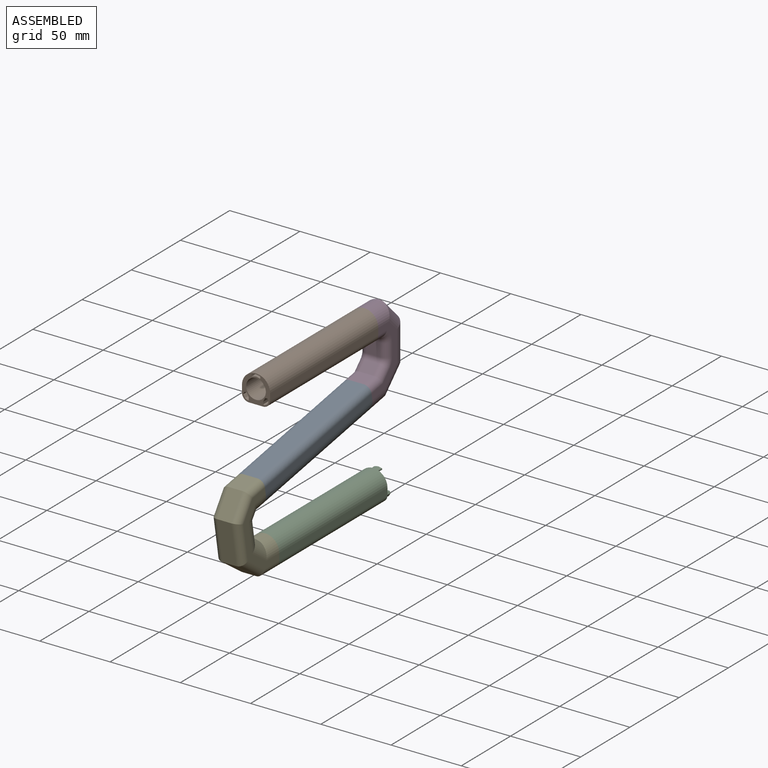
[diagram: assembled view]
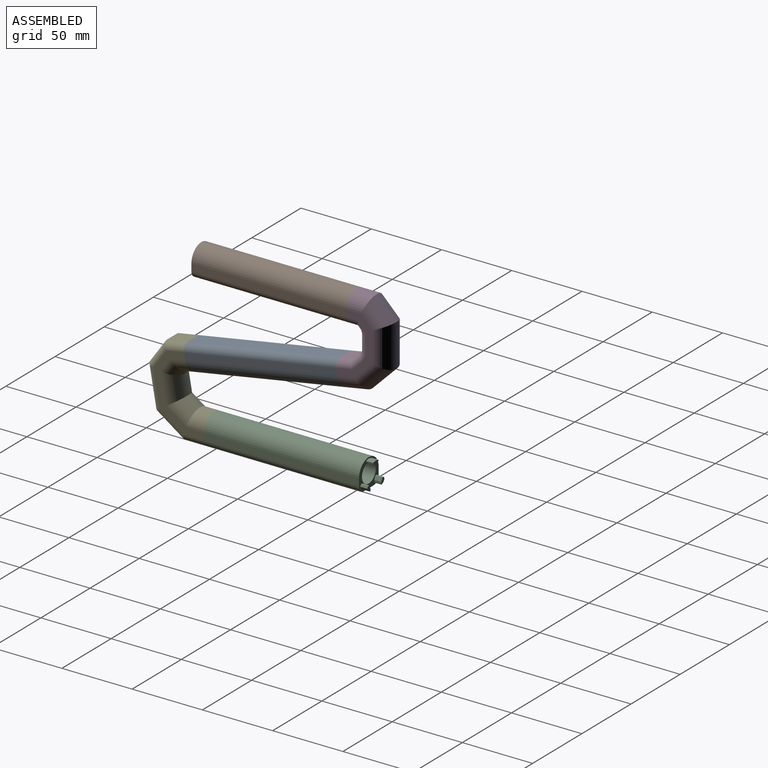
[diagram: assembled view, second angle]
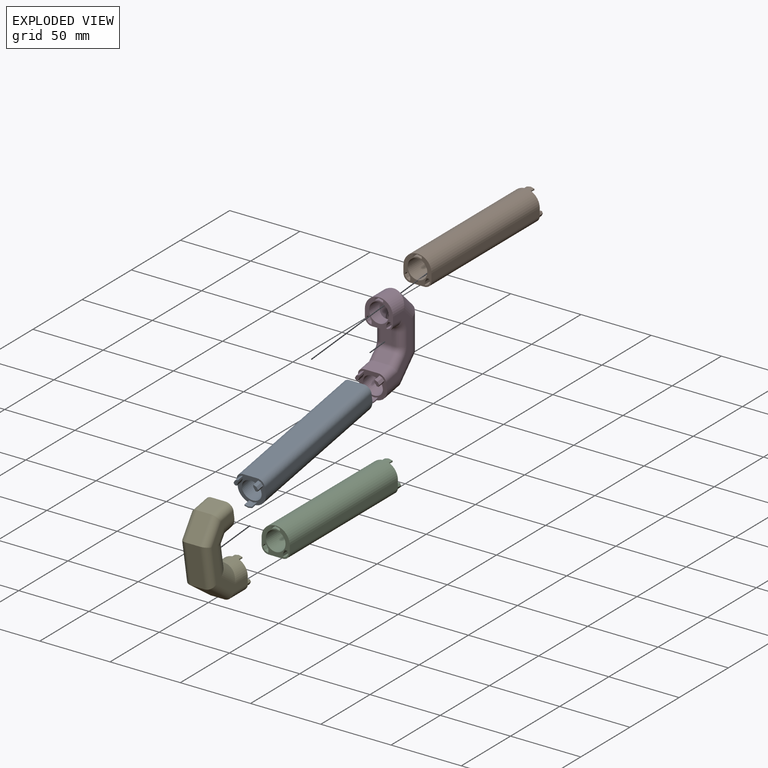
[diagram: exploded view]
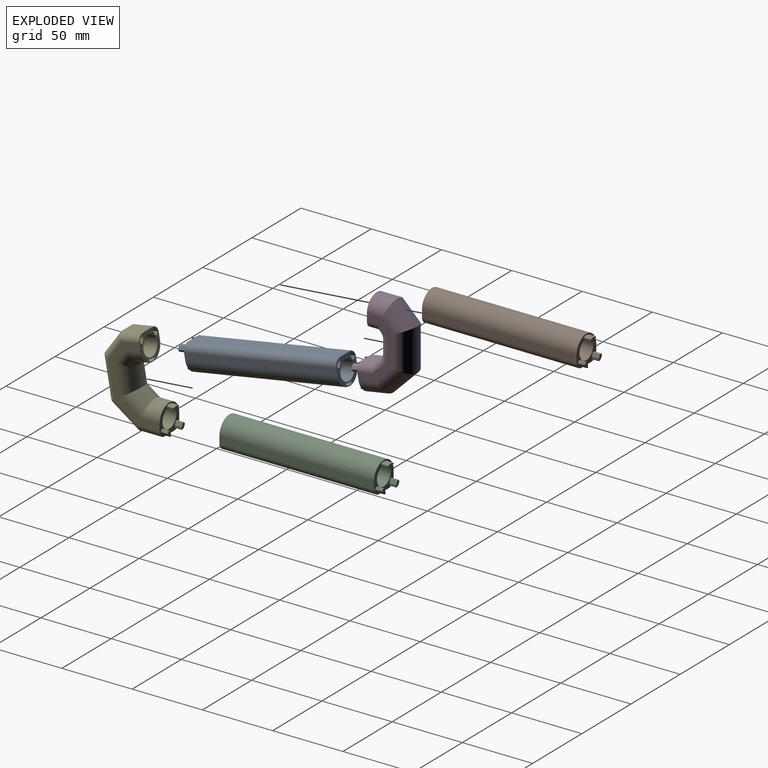
[diagram: exploded view, second angle]
ASSEMBLY  parts=5 mates=4
PART A: 59 faces, bbox 20x115x20 mm
  f0: plane 20x20mm, normal (0,1,0), area 169.7mm2, adj f2,f3,f4,f5,f6,f7,f8,f34
  f1: plane 20x20mm, normal (0,-1,0), area 157.8mm2, adj f2,f3,f4,f5,f6,f7,f8,f9
  f2: plane 110x5mm, normal (-1,0,0), area 550mm2, adj f0,f1,f5,f7
  f3: plane 110x10mm, normal (0,0,-1), area 1100mm2, adj f0,f1,f7,f8
  f4: plane 110x5mm, normal (1,0,0), area 550mm2, adj f0,f1,f5,f8
  f5: cylinder r=10mm len=110mm, axis (0,1,0), area 3455.8mm2, adj f0,f1,f2,f4
  f6: cylinder r=7mm len=110mm, axis (0,1,0), area 4838.1mm2, adj f0,f1
  f7: cylinder r=5mm len=110mm, axis (0,1,0), area 863.9mm2, adj f0,f1,f2,f3
  f8: cylinder r=5mm len=110mm, axis (0,-1,0), area 863.9mm2, adj f0,f1,f3,f4
  f9: cylinder r=0.62mm len=5mm, axis (0,-1,0), area 1.4mm2, adj f1,f10,f16,f17
  f10: plane 5x2.86mm, normal (0.22,0,0.98), area 14.7mm2, adj f1,f9,f11,f17
  f11: plane 5x1.5mm, normal (-1,0,0), area 7.5mm2, adj f1,f10,f12,f17
  f12: plane 5x2.86mm, normal (-0.22,0,-0.98), area 14.7mm2, adj f1,f11,f13,f17
  f13: cylinder r=0.62mm len=5mm, axis (0,-1,0), area 1.4mm2, adj f1,f12,f14,f17
  f14: plane 5x2.86mm, normal (0.22,0,-0.98), area 14.7mm2, adj f1,f13,f15,f17
  f15: plane 5x1.5mm, normal (1,0,0), area 7.5mm2, adj f1,f14,f16,f17
  f16: plane 5x2.86mm, normal (-0.22,0,0.98), area 14.7mm2, adj f1,f9,f15,f17
  f17: plane 6x2.16mm, normal (0,-1,0), area 9mm2, adj f9,f10,f11,f12,f13,f14,f15,f16
  f18: plane 5x1.79mm, normal (-0.45,0,0.89), area 10mm2, adj f1,f19,f24,f25
  f19: plane 5x2.17mm, normal (-0.87,0,0.5), area 12.5mm2, adj f1,f18,f20,f25
  f20: plane 5x1.69mm, normal (-0.88,0,-0.48), area 9.7mm2, adj f1,f19,f21,f25
  f21: plane 5x1.68mm, normal (0,0,-1), area 8.4mm2, adj f1,f20,f22,f25
  f22: plane 5x2.7mm, normal (0.9,0,-0.44), area 15mm2, adj f1,f21,f23,f25
  f23: plane 5x1.5mm, normal (1,0,0), area 7.5mm2, adj f1,f22,f24,f25
  f24: cylinder r=0.62mm len=5mm, axis (0,-1,0), area 6.3mm2, adj f1,f18,f23,f25
  f25: plane 4.82x3.93mm, normal (0,-1,0), area 12.8mm2, adj f18,f19,f20,f21,f22,f23,f24
  f26: plane 5x1.69mm, normal (0.88,0,-0.48), area 9.7mm2, adj f1,f27,f32,f33
  f27: plane 5x2.17mm, normal (0.87,0,0.5), area 12.5mm2, adj f1,f26,f28,f33
  f28: plane 5x1.79mm, normal (0.45,0,0.89), area 10mm2, adj f1,f27,f29,f33
  f29: cylinder r=0.62mm len=5mm, axis (0,-1,0), area 6.3mm2, adj f1,f28,f30,f33
  f30: plane 5x1.5mm, normal (-1,0,0), area 7.5mm2, adj f1,f29,f31,f33
  f31: plane 5x2.7mm, normal (-0.9,0,-0.44), area 15mm2, adj f1,f30,f32,f33
  f32: plane 5x1.68mm, normal (0,0,-1), area 8.4mm2, adj f1,f26,f31,f33
  f33: plane 4.82x3.93mm, normal (0,-1,0), area 12.8mm2, adj f26,f27,f28,f29,f30,f31,f32
  f34: plane 5x1.71mm, normal (0.45,0,-0.89), area 9.6mm2, adj f0,f35,f40,f41
  f35: cylinder r=0.32mm len=5mm, axis (0,-1,0), area 3.2mm2, adj f0,f34,f36,f41
  f36: plane 5x1.43mm, normal (-1,0,0), area 7.2mm2, adj f0,f35,f37,f41
  f37: plane 5x2.47mm, normal (-0.9,0,0.44), area 13.7mm2, adj f0,f36,f38,f41
  f38: plane 5x1.32mm, normal (0,0,1), area 6.6mm2, adj f0,f37,f39,f41
  f39: plane 5x1.39mm, normal (0.88,0,0.48), area 7.9mm2, adj f0,f38,f40,f41
  f40: plane 5x1.94mm, normal (0.87,0,-0.5), area 11.2mm2, adj f0,f34,f39,f41
  f41: plane 4.22x3.29mm, normal (0,1,0), area 9mm2, adj f34,f35,f36,f37,f38,f39,f40
  f42: plane 5x1.39mm, normal (-0.88,0,0.48), area 7.9mm2, adj f0,f43,f48,f49
  f43: plane 5x1.32mm, normal (0,0,1), area 6.6mm2, adj f0,f42,f44,f49
  f44: plane 5x2.47mm, normal (0.9,0,0.44), area 13.7mm2, adj f0,f43,f45,f49
  f45: plane 5x1.43mm, normal (1,0,0), area 7.2mm2, adj f0,f44,f46,f49
  f46: cylinder r=0.32mm len=5mm, axis (0,-1,0), area 3.2mm2, adj f0,f45,f47,f49
  f47: plane 5x1.71mm, normal (-0.45,0,-0.89), area 9.6mm2, adj f0,f46,f48,f49
  f48: plane 5x1.94mm, normal (-0.87,0,-0.5), area 11.2mm2, adj f0,f42,f47,f49
  f49: plane 4.22x3.29mm, normal (0,1,0), area 9mm2, adj f42,f43,f44,f45,f46,f47,f48
  f50: plane 5x2.5mm, normal (0.22,0,-0.98), area 12.8mm2, adj f0,f51,f57,f58
  f51: plane 5x0.89mm, normal (-1,0,0), area 4.4mm2, adj f0,f50,f52,f58
  f52: plane 5x2.63mm, normal (-0.22,0,0.98), area 13.5mm2, adj f0,f51,f53,f58
  f53: cylinder r=0.32mm len=5mm, axis (0,-1,0), area 0.7mm2, adj f0,f52,f54,f58
  f54: plane 5x2.63mm, normal (0.22,0,0.98), area 13.5mm2, adj f0,f53,f55,f58
  f55: plane 5x0.89mm, normal (1,0,0), area 4.4mm2, adj f0,f54,f56,f58
  f56: plane 5x2.5mm, normal (-0.22,0,-0.98), area 12.8mm2, adj f0,f55,f57,f58
  f57: cylinder r=0.92mm len=5mm, axis (0,-1,0), area 2mm2, adj f0,f50,f56,f58
  f58: plane 5.4x1.49mm, normal (0,1,0), area 4.8mm2, adj f50,f51,f52,f53,f54,f55,f56,f57
PART B: same geometry as A
PART C: same geometry as A
PART D: 85 faces, bbox 20x51.8x62.8 mm
  f0: plane 20x16.38mm, normal (0,-0.57,0.82), area 169.7mm2, adj f6,f7,f8,f9,f18,f28,f34,f60
  f1: plane 20x14.14mm, normal (0,-0.71,0.71), area 157.7mm2, adj f5,f7,f8,f13,f14,f16,f30,f35
  f2: plane 10x7.93mm, normal (0,-1,0), area 79.3mm2, adj f6,f22,f26,f29
  f3: plane 10x6.57mm, normal (0,-0.71,0.71), area 92.9mm2, adj f20,f21,f25,f26
  f4: plane 10x1.36mm, normal (0,0,1), area 13.6mm2, adj f5,f15,f19,f20
  f5: plane 10x4.75mm, normal (0,0.71,0.71), area 67.2mm2, adj f1,f4,f14,f16
  f6: plane 10x8.19mm, normal (0,-0.82,-0.57), area 100mm2, adj f0,f2,f18,f28
  f7: plane 43.42x34.75mm, normal (1,0,0), area 339mm2, adj f0,f1,f9,f10,f11,f12,f13,f16
  f8: plane 43.42x34.75mm, normal (-1,0,0), area 339mm2, adj f0,f1,f9,f10,f11,f12,f13,f14
  f9: cylinder r=10mm len=20mm, axis (0,0.57,-0.82), area 476.3mm2, adj f0,f7,f8,f10
  f10: cylinder r=10mm len=24.62mm, axis (0,0,-1), area 689.2mm2, adj f7,f8,f9,f11
  f11: cylinder r=10mm len=28.3mm, axis (0,-0.71,-0.71), area 847.9mm2, adj f7,f8,f10,f12
  f12: cylinder r=10mm len=20.03mm, axis (0,-1,0), area 533.7mm2, adj f7,f8,f11,f13
  f13: cylinder r=10mm len=20mm, axis (0,-0.71,0.71), area 424mm2, adj f1,f7,f8,f12
  f14: cylinder r=5mm len=9.75mm, axis (0,-0.71,0.71), area 58.7mm2, adj f1,f5,f8,f15
  f15: cylinder r=5mm len=5mm, axis (0,-1,0), area 16.6mm2, adj f4,f8,f14,f17
  f16: cylinder r=5mm len=9.75mm, axis (0,0.71,-0.71), area 58.7mm2, adj f1,f5,f7,f19
  f17: torus R=10mm, axis (1,0,0), area 42.1mm2, adj f8,f15,f20,f21
  f18: cylinder r=5mm len=12.35mm, axis (0,0.57,-0.82), area 83mm2, adj f0,f6,f8,f22
  f19: cylinder r=5mm len=5mm, axis (0,1,0), area 16.6mm2, adj f4,f7,f16,f23
  f20: cylinder r=5mm len=10mm, axis (-1,0,0), area 39.3mm2, adj f3,f4,f17,f23
  f21: cylinder r=5mm len=10.1mm, axis (0,-0.71,-0.71), area 73mm2, adj f3,f8,f17,f24
  f22: cylinder r=5mm len=9.51mm, axis (0,0,-1), area 66.8mm2, adj f2,f8,f18,f24
  f23: torus R=10mm, axis (1,0,0), area 42.1mm2, adj f7,f19,f20,f25
  f24: torus R=10mm, axis (1,0,0), area 42.1mm2, adj f8,f21,f22,f26
  f25: cylinder r=5mm len=10.1mm, axis (0,0.71,0.71), area 73mm2, adj f3,f7,f23,f27
  f26: cylinder r=5mm len=10mm, axis (1,0,0), area 39.3mm2, adj f2,f3,f24,f27
  f27: torus R=10mm, axis (1,0,0), area 42.1mm2, adj f7,f25,f26,f29
  f28: cylinder r=5mm len=12.35mm, axis (0,-0.57,0.82), area 83mm2, adj f0,f6,f7,f29
  f29: cylinder r=5mm len=9.51mm, axis (0,0,1), area 66.8mm2, adj f2,f7,f27,f28
  f30: cylinder r=7mm len=19.66mm, axis (0,0.71,-0.71), area 477.6mm2, adj f1,f31
  f31: cylinder r=7mm len=17.59mm, axis (0,1,0), area 515.3mm2, adj f30,f32
  f32: cylinder r=7mm len=29.41mm, axis (0,0.71,0.71), area 955.1mm2, adj f31,f33
  f33: cylinder r=7mm len=22.47mm, axis (0,0,1), area 760.7mm2, adj f32,f34
  f34: cylinder r=7mm len=20.64mm, axis (0,-0.57,0.82), area 578.5mm2, adj f0,f33
  f35: plane 4.6x4.6mm, normal (1,0,0), area 7.5mm2, adj f1,f36,f41,f42
  f36: plane 5.44x5.44mm, normal (0.9,0.31,0.31), area 15mm2, adj f1,f35,f37,f42
  f37: plane 3.54x3.54mm, normal (0,0.71,0.71), area 8.4mm2, adj f1,f36,f38,f42
  f38: plane 4.73x4.73mm, normal (-0.88,0.34,0.34), area 9.7mm2, adj f1,f37,f39,f42
  f39: plane 5.07x5.07mm, normal (-0.87,-0.35,-0.35), area 12.5mm2, adj f1,f38,f40,f42
  f40: plane 4.17x4.17mm, normal (-0.45,-0.63,-0.63), area 10mm2, adj f1,f39,f41,f42
  f41: cylinder r=0.62mm len=3.97mm, axis (0,-0.71,0.71), area 6.3mm2, adj f1,f35,f40,f42
  f42: plane 3.93x3.41mm, normal (0,-0.71,0.71), area 12.8mm2, adj f35,f36,f37,f38,f39,f40,f41
  f43: plane 3.54x3.54mm, normal (0,0.71,0.71), area 8.4mm2, adj f1,f44,f49,f50
  f44: plane 5.44x5.44mm, normal (-0.9,0.31,0.31), area 15mm2, adj f1,f43,f45,f50
  f45: plane 4.6x4.6mm, normal (-1,0,0), area 7.5mm2, adj f1,f44,f46,f50
  f46: cylinder r=0.62mm len=3.97mm, axis (0,-0.71,0.71), area 6.3mm2, adj f1,f45,f47,f50
  f47: plane 4.17x4.17mm, normal (0.45,-0.63,-0.63), area 10mm2, adj f1,f46,f48,f50
  f48: plane 5.07x5.07mm, normal (0.87,-0.35,-0.35), area 12.5mm2, adj f1,f47,f49,f50
  f49: plane 4.73x4.73mm, normal (0.88,0.34,0.34), area 9.7mm2, adj f1,f43,f48,f50
  f50: plane 3.93x3.41mm, normal (0,-0.71,0.71), area 12.8mm2, adj f43,f44,f45,f46,f47,f48,f49
  f51: plane 4.6x4.6mm, normal (-1,0,0), area 7.5mm2, adj f1,f52,f58,f59
  f52: plane 3.99x3.99mm, normal (0.22,-0.69,-0.69), area 14.8mm2, adj f1,f51,f53,f59
  f53: cylinder r=0.62mm len=3.55mm, axis (0,-0.71,0.71), area 1.4mm2, adj f1,f52,f54,f59
  f54: plane 3.99x3.99mm, normal (-0.22,-0.69,-0.69), area 14.8mm2, adj f1,f53,f55,f59
  f55: plane 4.6x4.6mm, normal (1,0,0), area 7.5mm2, adj f1,f54,f56,f59
  f56: plane 3.99x3.99mm, normal (0.22,0.69,0.69), area 14.8mm2, adj f1,f55,f57,f59
  f57: cylinder r=0.62mm len=3.55mm, axis (0,-0.71,0.71), area 1.4mm2, adj f1,f56,f58,f59
  f58: plane 3.99x3.99mm, normal (-0.22,0.69,0.69), area 14.8mm2, adj f1,f51,f57,f59
  f59: plane 6.04x1.53mm, normal (0,-0.71,0.71), area 9.1mm2, adj f51,f52,f53,f54,f55,f56,f57,f58
  f60: plane 4.59x3.57mm, normal (-0.45,-0.73,-0.51), area 9.6mm2, adj f0,f61,f66,f67
  f61: cylinder r=0.32mm len=4.28mm, axis (0,0.57,-0.82), area 3.2mm2, adj f0,f60,f62,f67
  f62: plane 4.92x4.04mm, normal (1,0,0), area 7.2mm2, adj f0,f61,f63,f67
  f63: plane 5.51x4.89mm, normal (0.9,0.36,0.25), area 13.7mm2, adj f0,f62,f64,f67
  f64: plane 4.1x2.87mm, normal (0,0.82,0.57), area 6.6mm2, adj f0,f63,f65,f67
  f65: plane 4.89x4mm, normal (-0.88,0.4,0.28), area 7.9mm2, adj f0,f64,f66,f67
  f66: plane 5.21x4.46mm, normal (-0.87,-0.41,-0.29), area 11.2mm2, adj f0,f60,f65,f67
  f67: plane 3.45x3.29mm, normal (0,-0.57,0.82), area 9mm2, adj f60,f61,f62,f63,f64,f65,f66
  f68: plane 4.89x4mm, normal (0.88,0.4,0.28), area 7.9mm2, adj f0,f69,f74,f75
  f69: plane 4.1x2.87mm, normal (0,0.82,0.57), area 6.6mm2, adj f0,f68,f70,f75
  f70: plane 5.51x4.89mm, normal (-0.9,0.36,0.25), area 13.7mm2, adj f0,f69,f71,f75
  f71: plane 4.92x4.04mm, normal (-1,0,0), area 7.2mm2, adj f0,f70,f72,f75
  f72: cylinder r=0.32mm len=4.28mm, axis (0,0.57,-0.82), area 3.2mm2, adj f0,f71,f73,f75
  f73: plane 4.59x3.57mm, normal (0.45,-0.73,-0.51), area 9.6mm2, adj f0,f72,f74,f75
  f74: plane 5.21x4.46mm, normal (0.87,-0.41,-0.29), area 11.2mm2, adj f0,f68,f73,f75
  f75: plane 3.45x3.29mm, normal (0,-0.57,0.82), area 9mm2, adj f68,f69,f70,f71,f72,f73,f74
  f76: plane 4.42x3.33mm, normal (-0.22,-0.8,-0.56), area 12.8mm2, adj f0,f77,f83,f84
  f77: plane 4.6x3.59mm, normal (1,0,0), area 4.4mm2, adj f0,f76,f78,f84
  f78: plane 4.44x3.35mm, normal (0.22,0.8,0.56), area 13.5mm2, adj f0,f77,f79,f84
  f79: cylinder r=0.32mm len=4.1mm, axis (0,0.57,-0.82), area 0.7mm2, adj f0,f78,f80,f84
  f80: plane 4.44x3.35mm, normal (-0.22,0.8,0.56), area 13.5mm2, adj f0,f79,f81,f84
  f81: plane 4.6x3.59mm, normal (-1,0,0), area 4.4mm2, adj f0,f80,f82,f84
  f82: plane 4.42x3.33mm, normal (0.22,-0.8,-0.56), area 12.8mm2, adj f0,f81,f83,f84
  f83: cylinder r=0.92mm len=4.11mm, axis (0,0.57,-0.82), area 2mm2, adj f0,f76,f82,f84
  f84: plane 5.4x1.22mm, normal (0,-0.57,0.82), area 4.8mm2, adj f76,f77,f78,f79,f80,f81,f82,f83
PART E: 79 faces, bbox 20x51.8x62.4 mm
  f0: plane 20x14.14mm, normal (0,-0.71,0.71), area 157.7mm2, adj f2,f7,f8,f13,f18,f19,f24,f54
  f1: plane 20x16.38mm, normal (0,-0.57,0.82), area 169.7mm2, adj f6,f7,f8,f9,f14,f23,f28,f29
  f2: plane 10.61x10.61mm, normal (0,-0.71,-0.71), area 150mm2, adj f0,f3,f13,f18
  f3: plane 20x10mm, normal (0,0,-1), area 200mm2, adj f2,f4,f12,f17
  f4: plane 21.21x21.21mm, normal (0,0.71,-0.71), area 300mm2, adj f3,f5,f11,f16
  f5: plane 24.59x10mm, normal (0,1,0), area 245.9mm2, adj f4,f6,f10,f15
  f6: plane 13.36x10mm, normal (0,0.82,0.57), area 163.1mm2, adj f1,f5,f9,f14
  f7: plane 51.29x43.28mm, normal (1,0,0), area 412.6mm2, adj f0,f1,f14,f15,f16,f17,f18,f19
  f8: plane 51.29x43.28mm, normal (-1,0,0), area 412.6mm2, adj f0,f1,f9,f10,f11,f12,f13,f19
  f9: cylinder r=5mm len=16.23mm, axis (0,-0.57,0.82), area 123.6mm2, adj f1,f6,f8,f10
  f10: cylinder r=5mm len=24.59mm, axis (0,0,1), area 182.7mm2, adj f5,f8,f9,f11
  f11: cylinder r=5mm len=24.75mm, axis (0,0.71,0.71), area 223.8mm2, adj f4,f8,f10,f12
  f12: cylinder r=5mm len=20mm, axis (0,1,0), area 145.3mm2, adj f3,f8,f11,f13
  f13: cylinder r=5mm len=14.14mm, axis (0,0.71,-0.71), area 111.9mm2, adj f0,f2,f8,f12
  f14: cylinder r=5mm len=16.23mm, axis (0,0.57,-0.82), area 123.6mm2, adj f1,f6,f7,f15
  f15: cylinder r=5mm len=24.59mm, axis (0,0,-1), area 182.7mm2, adj f5,f7,f14,f16
  f16: cylinder r=5mm len=24.75mm, axis (0,-0.71,-0.71), area 223.8mm2, adj f4,f7,f15,f17
  f17: cylinder r=5mm len=20mm, axis (0,-1,0), area 145.3mm2, adj f3,f7,f16,f18
  f18: cylinder r=5mm len=14.14mm, axis (0,-0.71,0.71), area 111.9mm2, adj f0,f2,f7,f17
  f19: cylinder r=10mm len=20mm, axis (0,0.71,-0.71), area 258.3mm2, adj f0,f7,f8,f20
  f20: cylinder r=10mm len=20mm, axis (0,1,0), area 202.4mm2, adj f7,f8,f19,f21
  f21: cylinder r=10mm len=22.43mm, axis (0,0.71,0.71), area 516.5mm2, adj f7,f8,f20,f22
  f22: cylinder r=10mm len=20mm, axis (0,0,1), area 397.4mm2, adj f7,f8,f21,f23
  f23: cylinder r=10mm len=20mm, axis (0,-0.57,0.82), area 350.2mm2, adj f1,f7,f8,f22
  f24: cylinder r=7mm len=19.66mm, axis (0,0.71,-0.71), area 477.6mm2, adj f0,f25
  f25: cylinder r=7mm len=17.59mm, axis (0,1,0), area 515.3mm2, adj f24,f26
  f26: cylinder r=7mm len=29.41mm, axis (0,0.71,0.71), area 955.1mm2, adj f25,f27
  f27: cylinder r=7mm len=22.47mm, axis (0,0,1), area 760.7mm2, adj f26,f28
  f28: cylinder r=7mm len=20.64mm, axis (0,-0.57,0.82), area 578.5mm2, adj f1,f27
  f29: plane 4.59x3.57mm, normal (0.45,0.73,0.51), area 9.6mm2, adj f1,f30,f35,f36
  f30: cylinder r=0.32mm len=4.28mm, axis (0,0.57,-0.82), area 3.2mm2, adj f1,f29,f31,f36
  f31: plane 4.92x4.04mm, normal (-1,0,0), area 7.2mm2, adj f1,f30,f32,f36
  f32: plane 5.51x4.89mm, normal (-0.9,-0.36,-0.25), area 13.7mm2, adj f1,f31,f33,f36
  f33: plane 4.1x2.87mm, normal (0,-0.82,-0.57), area 6.6mm2, adj f1,f32,f34,f36
  f34: plane 4.89x4mm, normal (0.88,-0.4,-0.28), area 7.9mm2, adj f1,f33,f35,f36
  f35: plane 5.21x4.46mm, normal (0.87,0.41,0.29), area 11.2mm2, adj f1,f29,f34,f36
  f36: plane 3.45x3.29mm, normal (0,-0.57,0.82), area 9mm2, adj f29,f30,f31,f32,f33,f34,f35
  f37: plane 4.89x4mm, normal (-0.88,-0.4,-0.28), area 7.9mm2, adj f1,f38,f43,f44
  f38: plane 4.1x2.87mm, normal (0,-0.82,-0.57), area 6.6mm2, adj f1,f37,f39,f44
  f39: plane 5.51x4.89mm, normal (0.9,-0.36,-0.25), area 13.7mm2, adj f1,f38,f40,f44
  f40: plane 4.92x4.04mm, normal (1,0,0), area 7.2mm2, adj f1,f39,f41,f44
  f41: cylinder r=0.32mm len=4.28mm, axis (0,0.57,-0.82), area 3.2mm2, adj f1,f40,f42,f44
  f42: plane 4.59x3.57mm, normal (-0.45,0.73,0.51), area 9.6mm2, adj f1,f41,f43,f44
  f43: plane 5.21x4.46mm, normal (-0.87,0.41,0.29), area 11.2mm2, adj f1,f37,f42,f44
  f44: plane 3.45x3.29mm, normal (0,-0.57,0.82), area 9mm2, adj f37,f38,f39,f40,f41,f42,f43
  f45: plane 4.42x3.33mm, normal (0.22,0.8,0.56), area 12.8mm2, adj f1,f46,f52,f53
  f46: plane 4.6x3.59mm, normal (-1,0,0), area 4.4mm2, adj f1,f45,f47,f53
  f47: plane 4.44x3.35mm, normal (-0.22,-0.8,-0.56), area 13.5mm2, adj f1,f46,f48,f53
  f48: cylinder r=0.32mm len=4.1mm, axis (0,0.57,-0.82), area 0.7mm2, adj f1,f47,f49,f53
  f49: plane 4.44x3.35mm, normal (0.22,-0.8,-0.56), area 13.5mm2, adj f1,f48,f50,f53
  f50: plane 4.6x3.59mm, normal (1,0,0), area 4.4mm2, adj f1,f49,f51,f53
  f51: plane 4.42x3.33mm, normal (-0.22,0.8,0.56), area 12.8mm2, adj f1,f50,f52,f53
  f52: cylinder r=0.92mm len=4.11mm, axis (0,0.57,-0.82), area 2mm2, adj f1,f45,f51,f53
  f53: plane 5.4x1.22mm, normal (0,-0.57,0.82), area 4.8mm2, adj f45,f46,f47,f48,f49,f50,f51,f52
  f54: plane 4.6x4.6mm, normal (1,0,0), area 7.5mm2, adj f0,f55,f61,f62
  f55: plane 3.99x3.99mm, normal (-0.22,0.69,0.69), area 14.8mm2, adj f0,f54,f56,f62
  f56: cylinder r=0.62mm len=3.55mm, axis (0,-0.71,0.71), area 1.4mm2, adj f0,f55,f57,f62
  f57: plane 3.99x3.99mm, normal (0.22,0.69,0.69), area 14.8mm2, adj f0,f56,f58,f62
  f58: plane 4.6x4.6mm, normal (-1,0,0), area 7.5mm2, adj f0,f57,f59,f62
  f59: plane 3.99x3.99mm, normal (-0.22,-0.69,-0.69), area 14.8mm2, adj f0,f58,f60,f62
  f60: cylinder r=0.62mm len=3.55mm, axis (0,-0.71,0.71), area 1.4mm2, adj f0,f59,f61,f62
  f61: plane 3.99x3.99mm, normal (0.22,-0.69,-0.69), area 14.8mm2, adj f0,f54,f60,f62
  f62: plane 6.04x1.53mm, normal (0,-0.71,0.71), area 9.1mm2, adj f54,f55,f56,f57,f58,f59,f60,f61
  f63: plane 4.6x4.6mm, normal (-1,0,0), area 7.5mm2, adj f0,f64,f69,f70
  f64: plane 5.44x5.44mm, normal (-0.9,-0.31,-0.31), area 15mm2, adj f0,f63,f65,f70
  f65: plane 3.54x3.54mm, normal (0,-0.71,-0.71), area 8.4mm2, adj f0,f64,f66,f70
  f66: plane 4.73x4.73mm, normal (0.88,-0.34,-0.34), area 9.7mm2, adj f0,f65,f67,f70
  f67: plane 5.07x5.07mm, normal (0.87,0.35,0.35), area 12.5mm2, adj f0,f66,f68,f70
  f68: plane 4.17x4.17mm, normal (0.45,0.63,0.63), area 10mm2, adj f0,f67,f69,f70
  f69: cylinder r=0.62mm len=3.97mm, axis (0,-0.71,0.71), area 6.3mm2, adj f0,f63,f68,f70
  f70: plane 3.93x3.41mm, normal (0,-0.71,0.71), area 12.8mm2, adj f63,f64,f65,f66,f67,f68,f69
  f71: plane 3.54x3.54mm, normal (0,-0.71,-0.71), area 8.4mm2, adj f0,f72,f77,f78
  f72: plane 5.44x5.44mm, normal (0.9,-0.31,-0.31), area 15mm2, adj f0,f71,f73,f78
  f73: plane 4.6x4.6mm, normal (1,0,0), area 7.5mm2, adj f0,f72,f74,f78
  f74: cylinder r=0.62mm len=3.97mm, axis (0,-0.71,0.71), area 6.3mm2, adj f0,f73,f75,f78
  f75: plane 4.17x4.17mm, normal (-0.45,0.63,0.63), area 10mm2, adj f0,f74,f76,f78
  f76: plane 5.07x5.07mm, normal (-0.87,0.35,0.35), area 12.5mm2, adj f0,f75,f77,f78
  f77: plane 4.73x4.73mm, normal (-0.88,-0.34,-0.34), area 9.7mm2, adj f0,f71,f76,f78
  f78: plane 3.93x3.41mm, normal (0,-0.71,0.71), area 12.8mm2, adj f71,f72,f73,f74,f75,f76,f77
PLACE A rot(axis=(-1,0,0),170deg) t=(-45.64,-62.2,39.14)mm
PLACE B t=(-45.64,52.17,102.75)mm
PLACE C t=(-45.64,61.48,-3.65)mm
PLACE D rot(axis=(0,-0.92,0.38),180deg) t=(-45.64,61.31,90.33)mm
PLACE E rot(axis=(-1,0,0),125deg) t=(-45.64,-69.04,25.31)mm
MATE fastened D.f30 <-> B.f6  axis (0,-1,0) through (-45.64,52.17,102.75)mm
MATE fastened E.f19 <-> A.f6  axis (0,0.98,0.17) through (-45.64,-62.2,39.14)mm
MATE fastened A.f5 <-> D.f9  axis (0,0.98,0.17) through (-45.64,46.13,58.24)mm
MATE fastened C.f6 <-> E.f23  axis (0,-1,0) through (-45.64,-48.52,-3.65)mm
